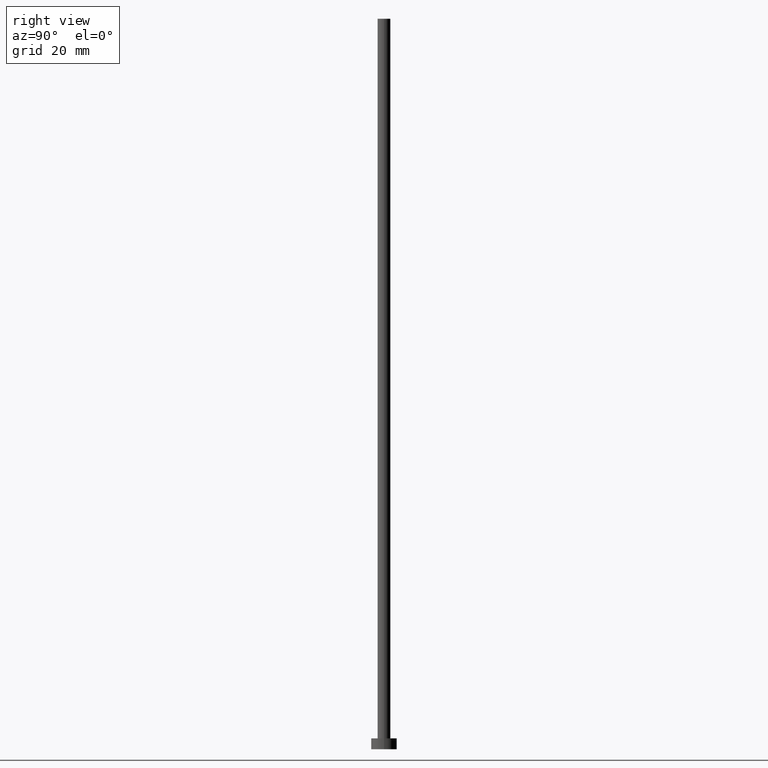
[diagram: clean part render]
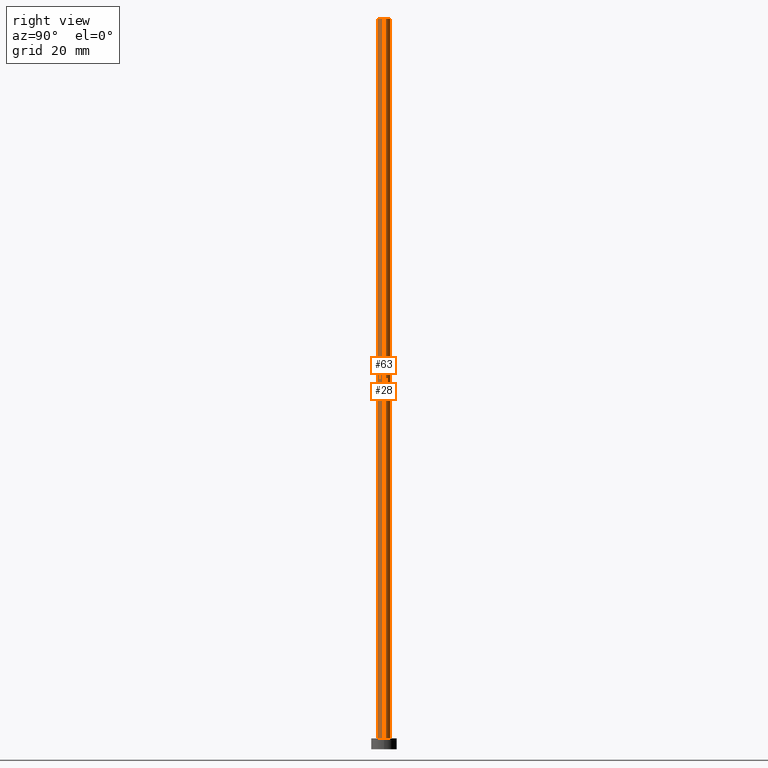
[diagram: same view with one multi-face feature highlighted, each face labeled with its STEP entity id]
A machine part, right view. The highlighted faces form ONE feature: a constant-radius fillet chain: 2 tangent blend faces with common blend radius 1.75 mm. The faces share edges in the B-rep.
Their STEP definitions:
[1] entity #63 (Cylinder):
#9 = AXIS2_PLACEMENT_3D ( 'NONE', #178, #195, #61 ) ;
#12 = EDGE_LOOP ( 'NONE', ( #92, #112, #32, #95 ) ) ;
#13 = CARTESIAN_POINT ( 'NONE',  ( 1.750000000000000000, 2.143131898507868297E-16, 3.000000000000000000 ) ) ;
#17 = EDGE_CURVE ( 'NONE', #150, #72, #157, .T. ) ;
#18 = LINE ( 'NONE', #136, #250 ) ;
#32 = ORIENTED_EDGE ( 'NONE', *, *, #78, .T. ) ;
#40 = DIRECTION ( 'NONE',  ( -0.000000000000000000, -0.000000000000000000, -1.000000000000000000 ) ) ;
#42 = CARTESIAN_POINT ( 'NONE',  ( 1.750000000000000000, 2.143131898507868297E-16, 200.0000000000000000 ) ) ;
#52 = VERTEX_POINT ( 'NONE', #81 ) ;
#54 = EDGE_CURVE ( 'NONE', #52, #190, #175, .T. ) ;
#58 = FACE_OUTER_BOUND ( 'NONE', #12, .T. ) ;
#61 = DIRECTION ( 'NONE',  ( -1.000000000000000000, 0.000000000000000000, 0.000000000000000000 ) ) ;
#62 = DIRECTION ( 'NONE',  ( 0.000000000000000000, 0.000000000000000000, 1.000000000000000000 ) ) ;
#63 = ADVANCED_FACE ( 'NONE', ( #58 ), #194, .T. ) ;
#72 = VERTEX_POINT ( 'NONE', #42 ) ;
#74 = CARTESIAN_POINT ( 'NONE',  ( 0.000000000000000000, 0.000000000000000000, 200.0000000000000000 ) ) ;
#78 = EDGE_CURVE ( 'NONE', #150, #52, #18, .T. ) ;
#81 = CARTESIAN_POINT ( 'NONE',  ( -1.750000000000000000, 0.000000000000000000, 3.000000000000000000 ) ) ;
#83 = DIRECTION ( 'NONE',  ( 1.000000000000000000, 0.000000000000000000, 0.000000000000000000 ) ) ;
#86 = AXIS2_PLACEMENT_3D ( 'NONE', #74, #153, #229 ) ;
#92 = ORIENTED_EDGE ( 'NONE', *, *, #108, .F. ) ;
#95 = ORIENTED_EDGE ( 'NONE', *, *, #54, .T. ) ;
#101 = CARTESIAN_POINT ( 'NONE',  ( -1.750000000000000000, 0.000000000000000000, 200.0000000000000000 ) ) ;
#108 = EDGE_CURVE ( 'NONE', #72, #190, #249, .T. ) ;
#111 = AXIS2_PLACEMENT_3D ( 'NONE', #235, #62, #83 ) ;
#112 = ORIENTED_EDGE ( 'NONE', *, *, #17, .F. ) ;
#136 = CARTESIAN_POINT ( 'NONE',  ( -1.750000000000000000, 0.000000000000000000, 200.0000000000000000 ) ) ;
#143 = VECTOR ( 'NONE', #159, 1000.000000000000000 ) ;
#150 = VERTEX_POINT ( 'NONE', #101 ) ;
#153 = DIRECTION ( 'NONE',  ( 0.000000000000000000, 0.000000000000000000, 1.000000000000000000 ) ) ;
#157 = CIRCLE ( 'NONE', #86, 1.750000000000000000 ) ;
#159 = DIRECTION ( 'NONE',  ( -0.000000000000000000, -0.000000000000000000, -1.000000000000000000 ) ) ;
#175 = CIRCLE ( 'NONE', #111, 1.750000000000000000 ) ;
#178 = CARTESIAN_POINT ( 'NONE',  ( 0.000000000000000000, 0.000000000000000000, 200.0000000000000000 ) ) ;
#190 = VERTEX_POINT ( 'NONE', #13 ) ;
#192 = CARTESIAN_POINT ( 'NONE',  ( 1.750000000000000000, 2.143131898507868297E-16, 200.0000000000000000 ) ) ;
#194 = CYLINDRICAL_SURFACE ( 'NONE', #9, 1.750000000000000000 ) ;
#195 = DIRECTION ( 'NONE',  ( -0.000000000000000000, -0.000000000000000000, -1.000000000000000000 ) ) ;
#229 = DIRECTION ( 'NONE',  ( 1.000000000000000000, 0.000000000000000000, 0.000000000000000000 ) ) ;
#235 = CARTESIAN_POINT ( 'NONE',  ( 0.000000000000000000, 0.000000000000000000, 3.000000000000000000 ) ) ;
#249 = LINE ( 'NONE', #192, #143 ) ;
#250 = VECTOR ( 'NONE', #40, 1000.000000000000000 ) ;
[2] entity #28 (Cylinder):
#6 = CARTESIAN_POINT ( 'NONE',  ( 0.000000000000000000, 0.000000000000000000, 200.0000000000000000 ) ) ;
#7 = ORIENTED_EDGE ( 'NONE', *, *, #108, .T. ) ;
#13 = CARTESIAN_POINT ( 'NONE',  ( 1.750000000000000000, 2.143131898507868297E-16, 3.000000000000000000 ) ) ;
#18 = LINE ( 'NONE', #136, #250 ) ;
#28 = ADVANCED_FACE ( 'NONE', ( #225 ), #186, .T. ) ;
#30 = AXIS2_PLACEMENT_3D ( 'NONE', #117, #80, #118 ) ;
#31 = EDGE_LOOP ( 'NONE', ( #228, #7, #76, #244 ) ) ;
#33 = DIRECTION ( 'NONE',  ( -0.000000000000000000, -0.000000000000000000, -1.000000000000000000 ) ) ;
#40 = DIRECTION ( 'NONE',  ( -0.000000000000000000, -0.000000000000000000, -1.000000000000000000 ) ) ;
#42 = CARTESIAN_POINT ( 'NONE',  ( 1.750000000000000000, 2.143131898507868297E-16, 200.0000000000000000 ) ) ;
#52 = VERTEX_POINT ( 'NONE', #81 ) ;
#57 = AXIS2_PLACEMENT_3D ( 'NONE', #6, #33, #94 ) ;
#67 = CIRCLE ( 'NONE', #161, 1.750000000000000000 ) ;
#72 = VERTEX_POINT ( 'NONE', #42 ) ;
#76 = ORIENTED_EDGE ( 'NONE', *, *, #196, .T. ) ;
#78 = EDGE_CURVE ( 'NONE', #150, #52, #18, .T. ) ;
#80 = DIRECTION ( 'NONE',  ( 0.000000000000000000, 0.000000000000000000, 1.000000000000000000 ) ) ;
#81 = CARTESIAN_POINT ( 'NONE',  ( -1.750000000000000000, 0.000000000000000000, 3.000000000000000000 ) ) ;
#94 = DIRECTION ( 'NONE',  ( -1.000000000000000000, 0.000000000000000000, 0.000000000000000000 ) ) ;
#101 = CARTESIAN_POINT ( 'NONE',  ( -1.750000000000000000, 0.000000000000000000, 200.0000000000000000 ) ) ;
#106 = EDGE_CURVE ( 'NONE', #72, #150, #67, .T. ) ;
#108 = EDGE_CURVE ( 'NONE', #72, #190, #249, .T. ) ;
#117 = CARTESIAN_POINT ( 'NONE',  ( 0.000000000000000000, 0.000000000000000000, 3.000000000000000000 ) ) ;
#118 = DIRECTION ( 'NONE',  ( 1.000000000000000000, 0.000000000000000000, 0.000000000000000000 ) ) ;
#135 = CIRCLE ( 'NONE', #30, 1.750000000000000000 ) ;
#136 = CARTESIAN_POINT ( 'NONE',  ( -1.750000000000000000, 0.000000000000000000, 200.0000000000000000 ) ) ;
#143 = VECTOR ( 'NONE', #159, 1000.000000000000000 ) ;
#150 = VERTEX_POINT ( 'NONE', #101 ) ;
#159 = DIRECTION ( 'NONE',  ( -0.000000000000000000, -0.000000000000000000, -1.000000000000000000 ) ) ;
#161 = AXIS2_PLACEMENT_3D ( 'NONE', #197, #253, #210 ) ;
#186 = CYLINDRICAL_SURFACE ( 'NONE', #57, 1.750000000000000000 ) ;
#190 = VERTEX_POINT ( 'NONE', #13 ) ;
#192 = CARTESIAN_POINT ( 'NONE',  ( 1.750000000000000000, 2.143131898507868297E-16, 200.0000000000000000 ) ) ;
#196 = EDGE_CURVE ( 'NONE', #190, #52, #135, .T. ) ;
#197 = CARTESIAN_POINT ( 'NONE',  ( 0.000000000000000000, 0.000000000000000000, 200.0000000000000000 ) ) ;
#210 = DIRECTION ( 'NONE',  ( 1.000000000000000000, 0.000000000000000000, 0.000000000000000000 ) ) ;
#225 = FACE_OUTER_BOUND ( 'NONE', #31, .T. ) ;
#228 = ORIENTED_EDGE ( 'NONE', *, *, #106, .F. ) ;
#244 = ORIENTED_EDGE ( 'NONE', *, *, #78, .F. ) ;
#249 = LINE ( 'NONE', #192, #143 ) ;
#250 = VECTOR ( 'NONE', #40, 1000.000000000000000 ) ;
#253 = DIRECTION ( 'NONE',  ( 0.000000000000000000, 0.000000000000000000, 1.000000000000000000 ) ) ;